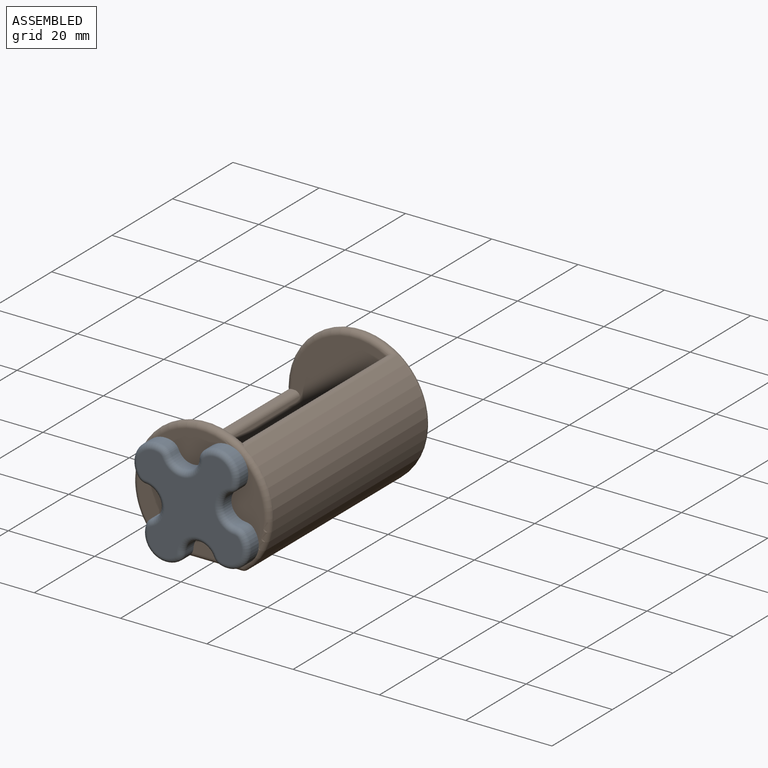
[diagram: assembled view]
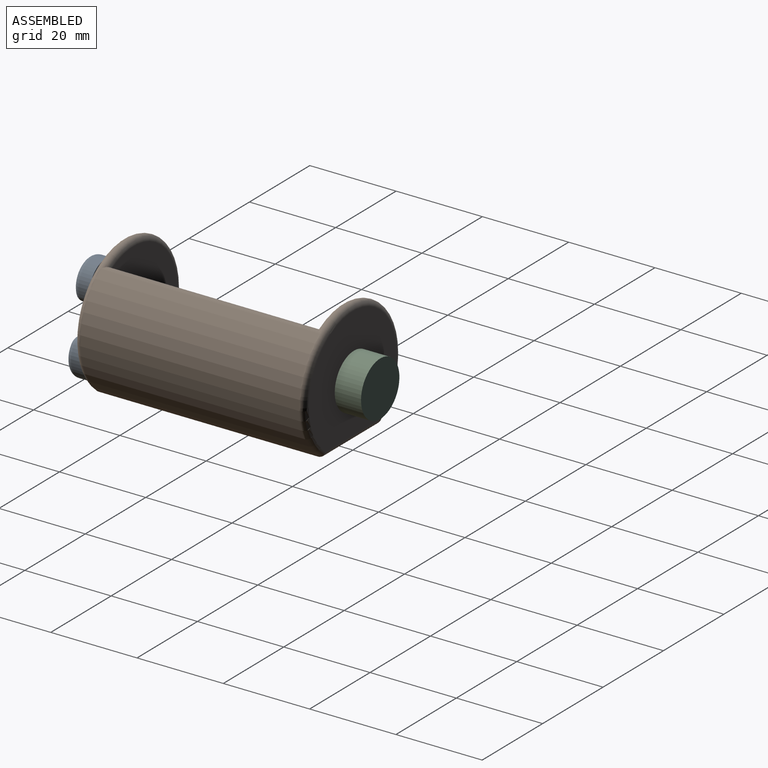
[diagram: assembled view, second angle]
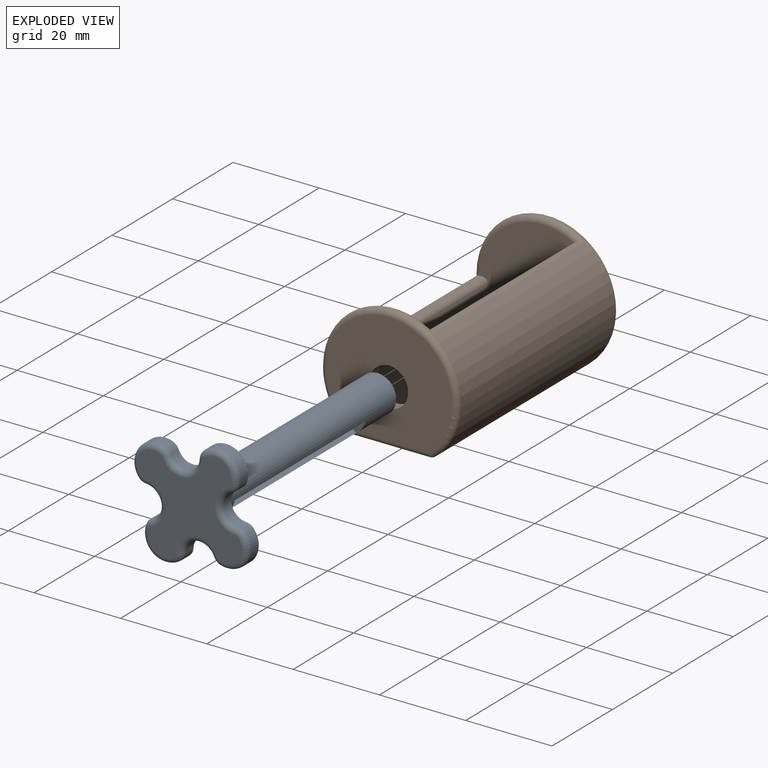
[diagram: exploded view]
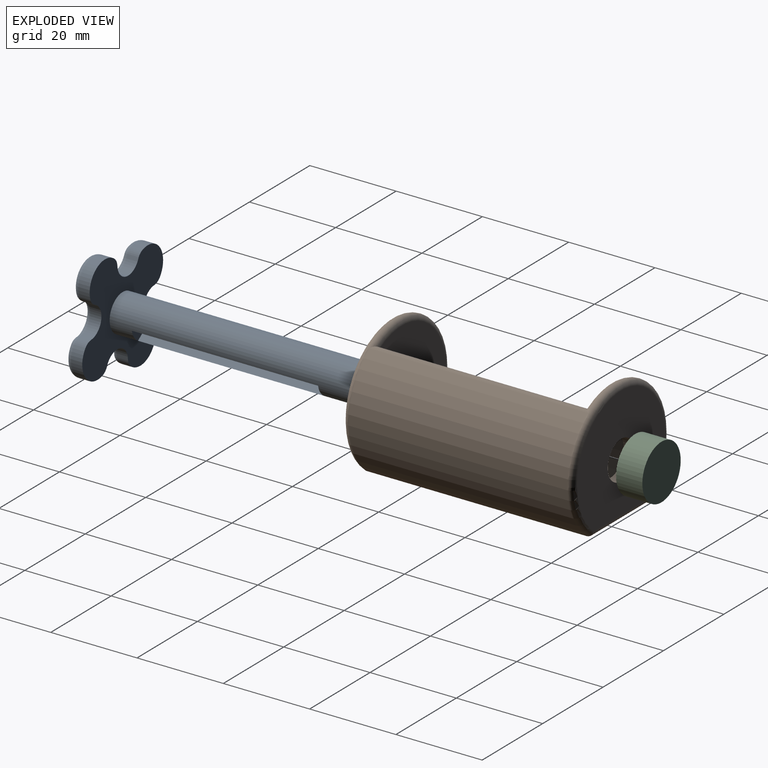
[diagram: exploded view, second angle]
ASSEMBLY  parts=3 mates=2
PART A: 40 faces, bbox 31.3x31.3x62.2 mm
  f0: cylinder r=3.59mm len=5.51mm, axis (0,0,-1), area 24.6mm2, adj f8,f16,f23,f38
  f1: cylinder r=5.08mm len=9.73mm, axis (0,0,-1), area 33mm2, adj f8,f16,f17,f37
  f2: cylinder r=3.59mm len=5.51mm, axis (0,0,-1), area 24.6mm2, adj f8,f17,f18,f33
  f3: cylinder r=5.08mm len=9.73mm, axis (0,0,-1), area 33mm2, adj f8,f18,f19,f29
  f4: cylinder r=3.59mm len=5.51mm, axis (0,0,-1), area 24.6mm2, adj f8,f19,f20,f25
  f5: cylinder r=5.08mm len=9.73mm, axis (0,0,-1), area 33mm2, adj f8,f20,f21,f26
  f6: cylinder r=3.59mm len=5.51mm, axis (0,0,-1), area 24.6mm2, adj f8,f21,f22,f30
  f7: cylinder r=5.08mm len=9.73mm, axis (0,0,-1), area 33mm2, adj f8,f22,f23,f34
  f8: plane 30.48x30.48mm, normal (0,0,1), area 382.6mm2, adj f0,f1,f2,f3,f4,f5,f6,f7
  f9: plane 27.94x27.94mm, normal (0,0,-1), area 309mm2, adj f24,f25,f26,f27,f28,f29,f30,f31
  f10: cylinder r=4.32mm len=58.42mm, axis (0,0,-1), area 1268.5mm2, adj f8,f11,f12,f13,f14,f15
  f11: plane 43.18x7.87mm, normal (1,0,0), area 339.8mm2, adj f10,f13,f14
  f12: plane 43.18x7.87mm, normal (-1,0,0), area 339.8mm2, adj f10,f13,f14
  f13: plane 8.64x3.56mm, normal (0,0,1), area 29.8mm2, adj f10,f11,f12
  f14: plane 8.64x3.56mm, normal (0,0,-1), area 29.8mm2, adj f10,f11,f12
  f15: plane 8.64x8.64mm, normal (0,0,1), area 58.6mm2, adj f10
  f16: cylinder r=2.54mm len=2.54mm, axis (0,0,1), area 5.5mm2, adj f0,f1,f8,f39
  f17: cylinder r=2.54mm len=2.54mm, axis (0,0,1), area 5.5mm2, adj f1,f2,f8,f35
  f18: cylinder r=2.54mm len=2.54mm, axis (0,0,1), area 5.5mm2, adj f2,f3,f8,f31
  f19: cylinder r=2.54mm len=2.54mm, axis (0,0,1), area 5.5mm2, adj f3,f4,f8,f27
  f20: cylinder r=2.54mm len=2.54mm, axis (0,0,1), area 5.5mm2, adj f4,f5,f8,f24
  f21: cylinder r=2.54mm len=2.54mm, axis (0,0,1), area 5.5mm2, adj f5,f6,f8,f28
  f22: cylinder r=2.54mm len=2.54mm, axis (0,0,1), area 5.5mm2, adj f6,f7,f8,f32
  f23: cylinder r=2.54mm len=2.54mm, axis (0,0,1), area 5.5mm2, adj f0,f7,f8,f36
  f24: torus R=1.27mm, axis (0,0,1), area 3.5mm2, adj f9,f20,f25,f26
  f25: torus R=4.86mm, axis (0,0,1), area 21.8mm2, adj f4,f9,f24,f27
  f26: torus R=3.81mm, axis (0,0,1), area 23.6mm2, adj f5,f9,f24,f28
  f27: torus R=1.27mm, axis (0,0,1), area 3.5mm2, adj f9,f19,f25,f29
  f28: torus R=1.27mm, axis (0,0,1), area 3.5mm2, adj f9,f21,f26,f30
  f29: torus R=3.81mm, axis (0,0,1), area 23.6mm2, adj f3,f9,f27,f31
  f30: torus R=4.86mm, axis (0,0,1), area 21.8mm2, adj f6,f9,f28,f32
  f31: torus R=1.27mm, axis (0,0,1), area 3.5mm2, adj f9,f18,f29,f33
  f32: torus R=1.27mm, axis (0,0,1), area 3.5mm2, adj f9,f22,f30,f34
  f33: torus R=4.86mm, axis (0,0,1), area 21.8mm2, adj f2,f9,f31,f35
  f34: torus R=3.81mm, axis (0,0,1), area 23.6mm2, adj f7,f9,f32,f36
  f35: torus R=1.27mm, axis (0,0,1), area 3.5mm2, adj f9,f17,f33,f37
  f36: torus R=1.27mm, axis (0,0,1), area 3.5mm2, adj f9,f23,f34,f38
  f37: torus R=3.81mm, axis (0,0,1), area 23.6mm2, adj f1,f9,f35,f39
  f38: torus R=4.86mm, axis (0,0,1), area 21.8mm2, adj f0,f9,f36,f39
  f39: torus R=1.27mm, axis (0,0,1), area 3.5mm2, adj f9,f16,f37,f38
PART B: 28 faces, bbox 34.4x53.3x30.6 mm
  f0: cylinder r=15.88mm len=50.8mm, axis (0,1,0), area 1499.2mm2, adj f17,f20,f23,f24
  f1: cylinder r=15.88mm len=50.8mm, axis (0,1,0), area 654.7mm2, adj f19,f20,f24,f25
  f2: cylinder r=4.45mm len=8.89mm, axis (0,1,0), area 70.9mm2, adj f3,f4
  f3: plane 27.31x26.04mm, normal (0,-1,0), area 490.2mm2, adj f2,f5,f6,f8,f9,f10,f20,f23
  f4: plane 29.21x26.04mm, normal (0,1,0), area 568.6mm2, adj f2,f14,f20
  f5: plane 48.26x11.07mm, normal (0,0,1), area 534.3mm2, adj f3,f9,f10,f13
  f6: plane 48.26x0.64mm, normal (0,0,1), area 30.8mm2, adj f3,f13,f25,f27
  f7: plane 50.8x18.18mm, normal (0,0,-1), area 923.7mm2, adj f14,f17,f18,f19
  f8: plane 48.26x0.55mm, normal (-0.87,0,0.5), area 30.8mm2, adj f3,f13,f23,f26
  f9: cylinder r=12.7mm len=48.26mm, axis (0,1,0), area 1272.3mm2, adj f3,f5,f13,f26
  f10: cylinder r=12.7mm len=48.26mm, axis (0,1,0), area 630.5mm2, adj f3,f5,f13,f27
  f11: cylinder r=4.45mm len=8.89mm, axis (0,1,0), area 70.9mm2, adj f12,f13
  f12: plane 29.21x26.04mm, normal (0,-1,0), area 568.6mm2, adj f11,f18,f24
  f13: plane 27.31x26.04mm, normal (0,1,0), area 490.2mm2, adj f5,f6,f8,f9,f10,f11,f23,f24
  f14: cylinder r=1.27mm len=18.18mm, axis (1,0,0), area 36.3mm2, adj f4,f7,f15,f16
  f15: sphere r=1.27mm, area 1.1mm2, adj f14,f19,f20
  f16: sphere r=1.27mm, area 1.1mm2, adj f14,f17,f20
  f17: cylinder r=1.27mm len=50.8mm, axis (0,1,0), area 43.4mm2, adj f0,f7,f16,f21
  f18: cylinder r=1.27mm len=18.18mm, axis (-1,0,0), area 36.3mm2, adj f7,f12,f21,f22
  f19: cylinder r=1.27mm len=50.8mm, axis (0,1,0), area 43.4mm2, adj f1,f7,f15,f22
  f20: torus R=14.61mm, axis (0,-1,0), area 218.3mm2, adj f0,f1,f3,f4,f15,f16,f23,f25
  f21: sphere r=1.27mm, area 1.1mm2, adj f17,f18,f24
  f22: sphere r=1.27mm, area 1.1mm2, adj f18,f19,f24
  f23: cylinder r=1.27mm len=50.8mm, axis (0,1,0), area 103.5mm2, adj f0,f3,f8,f13,f20,f24
  f24: torus R=14.61mm, axis (0,-1,0), area 218.3mm2, adj f0,f1,f12,f13,f21,f22,f23,f25
  f25: cylinder r=1.27mm len=50.8mm, axis (0,1,0), area 103.5mm2, adj f1,f3,f6,f13,f20,f24
  f26: cylinder r=1.27mm len=48.26mm, axis (0,1,0), area 90.7mm2, adj f3,f8,f9,f13
  f27: cylinder r=1.27mm len=48.26mm, axis (0,1,0), area 90.7mm2, adj f3,f6,f10,f13
PART C: 5 faces, bbox 12.7x6.1x12.7 mm
  f0: cylinder r=4.38mm len=8.76mm, axis (0,1,0), area 132.9mm2, adj f2,f4
  f1: cylinder r=6.35mm len=12.7mm, axis (0,1,0), area 243.2mm2, adj f2,f3
  f2: plane 12.7x12.7mm, normal (0,-1,0), area 66.4mm2, adj f0,f1
  f3: plane 12.7x12.7mm, normal (0,1,0), area 126.7mm2, adj f1
  f4: plane 8.76x8.76mm, normal (0,-1,0), area 60.3mm2, adj f0
PLACE A rot(axis=(-0.81,-0.42,-0.42),102.2deg) t=(0,-57.15,12.7)mm
PLACE B at identity fixed
PLACE C rot(axis=(0,1,0),35.2deg) t=(0,6.35,12.7)mm
MATE revolute A.f10 <-> B.f2  axis (0,1,0) through (0,-53.34,12.7)mm
MATE fastened A.f10 <-> C.f0  axis (0,1,0) through (0,5.08,12.7)mm
